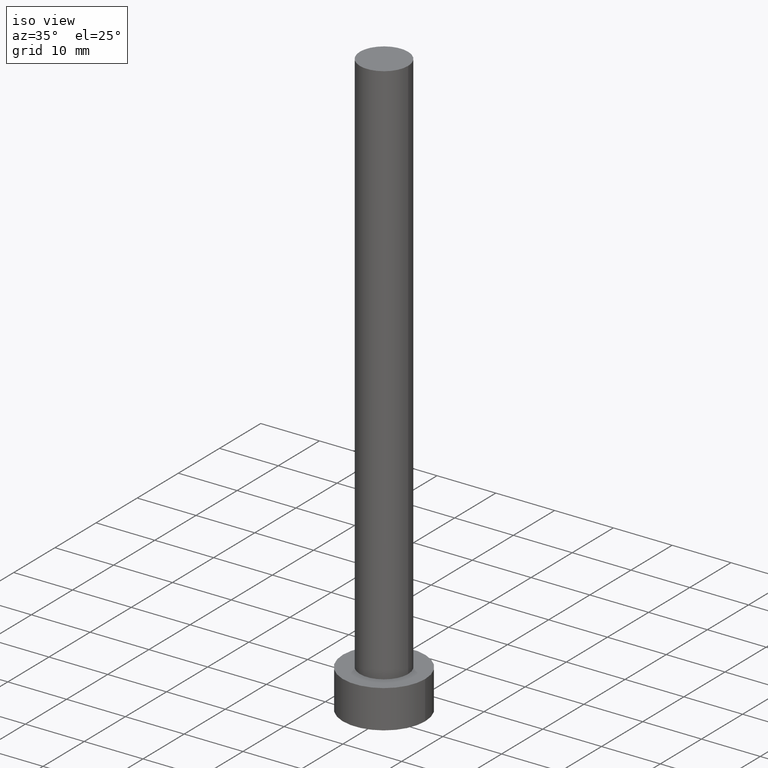
[diagram: clean part render]
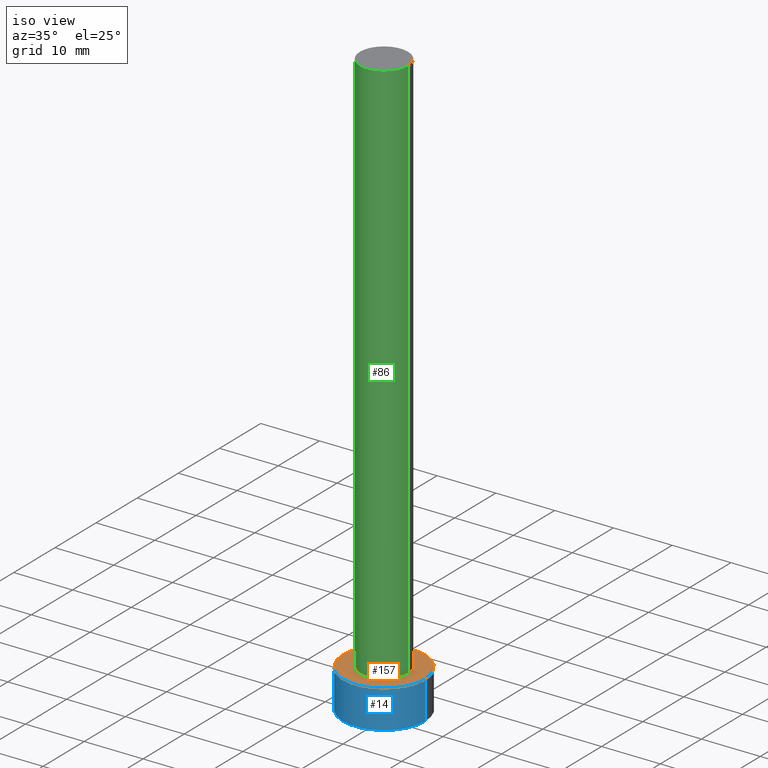
[diagram: same view with three faces highlighted in distinct colors, each labeled with its STEP entity id]
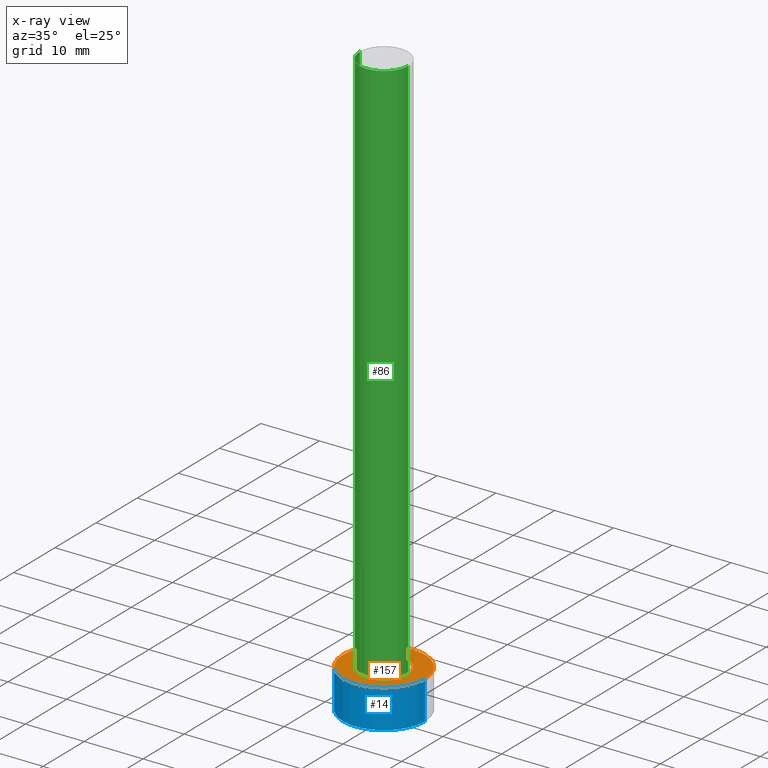
[diagram: x-ray of the same camera — body ghosted, the three highlighted faces saturated]
A machine part, iso view with three faces highlighted in distinct colors.
The next image is the same camera in x-ray (body ghosted, the three faces saturated) — at least one of them is partly hidden behind the body in this view.
Their STEP definitions:

[orange] entity #157 — the highlighted planar face has unit normal (0, 0, 1).
#1 = CARTESIAN_POINT ( 'NONE',  ( 0.000000000000000000, 0.000000000000000000, 6.500000000000000000 ) ) ;
#4 = CARTESIAN_POINT ( 'NONE',  ( -7.000000000000000000, 0.000000000000000000, 6.500000000000000000 ) ) ;
#13 = AXIS2_PLACEMENT_3D ( 'NONE', #1, #255, #175 ) ;
#16 = FACE_BOUND ( 'NONE', #26, .T. ) ;
#25 = DIRECTION ( 'NONE',  ( 0.000000000000000000, 0.000000000000000000, 1.000000000000000000 ) ) ;
#26 = EDGE_LOOP ( 'NONE', ( #96, #118 ) ) ;
#35 = FACE_OUTER_BOUND ( 'NONE', #208, .T. ) ;
#42 = DIRECTION ( 'NONE',  ( 1.000000000000000000, 0.000000000000000000, 0.000000000000000000 ) ) ;
#44 = ORIENTED_EDGE ( 'NONE', *, *, #232, .T. ) ;
#75 = CARTESIAN_POINT ( 'NONE',  ( 4.099999999999999645, 5.021051876504147385E-16, 6.500000000000000000 ) ) ;
#83 = VERTEX_POINT ( 'NONE', #217 ) ;
#85 = AXIS2_PLACEMENT_3D ( 'NONE', #149, #25, #115 ) ;
#89 = EDGE_CURVE ( 'NONE', #83, #122, #224, .T. ) ;
#90 = CIRCLE ( 'NONE', #134, 7.000000000000000000 ) ;
#93 = CARTESIAN_POINT ( 'NONE',  ( 0.000000000000000000, 0.000000000000000000, 6.500000000000000000 ) ) ;
#96 = ORIENTED_EDGE ( 'NONE', *, *, #89, .F. ) ;
#115 = DIRECTION ( 'NONE',  ( 1.000000000000000000, 0.000000000000000000, 0.000000000000000000 ) ) ;
#118 = ORIENTED_EDGE ( 'NONE', *, *, #173, .F. ) ;
#119 = CARTESIAN_POINT ( 'NONE',  ( 0.000000000000000000, 0.000000000000000000, 6.500000000000000000 ) ) ;
#120 = ORIENTED_EDGE ( 'NONE', *, *, #221, .T. ) ;
#122 = VERTEX_POINT ( 'NONE', #75 ) ;
#134 = AXIS2_PLACEMENT_3D ( 'NONE', #119, #161, #158 ) ;
#149 = CARTESIAN_POINT ( 'NONE',  ( 0.000000000000000000, 0.000000000000000000, 6.500000000000000000 ) ) ;
#154 = CARTESIAN_POINT ( 'NONE',  ( 0.000000000000000000, 0.000000000000000000, 6.500000000000000000 ) ) ;
#157 = ADVANCED_FACE ( 'NONE', ( #16, #35 ), #235, .T. ) ;
#158 = DIRECTION ( 'NONE',  ( 1.000000000000000000, 0.000000000000000000, 0.000000000000000000 ) ) ;
#160 = CIRCLE ( 'NONE', #85, 4.099999999999999645 ) ;
#161 = DIRECTION ( 'NONE',  ( 0.000000000000000000, 0.000000000000000000, 1.000000000000000000 ) ) ;
#169 = CIRCLE ( 'NONE', #195, 7.000000000000000000 ) ;
#173 = EDGE_CURVE ( 'NONE', #122, #83, #160, .T. ) ;
#175 = DIRECTION ( 'NONE',  ( 1.000000000000000000, 0.000000000000000000, 0.000000000000000000 ) ) ;
#177 = DIRECTION ( 'NONE',  ( 0.000000000000000000, 0.000000000000000000, 1.000000000000000000 ) ) ;
#195 = AXIS2_PLACEMENT_3D ( 'NONE', #154, #225, #42 ) ;
#206 = AXIS2_PLACEMENT_3D ( 'NONE', #93, #177, #213 ) ;
#207 = CARTESIAN_POINT ( 'NONE',  ( 7.000000000000000000, 8.572527594031471218E-16, 6.500000000000000000 ) ) ;
#208 = EDGE_LOOP ( 'NONE', ( #44, #120 ) ) ;
#213 = DIRECTION ( 'NONE',  ( 1.000000000000000000, 0.000000000000000000, -0.000000000000000000 ) ) ;
#217 = CARTESIAN_POINT ( 'NONE',  ( -4.099999999999999645, 0.000000000000000000, 6.500000000000000000 ) ) ;
#221 = EDGE_CURVE ( 'NONE', #244, #227, #90, .T. ) ;
#224 = CIRCLE ( 'NONE', #13, 4.099999999999999645 ) ;
#225 = DIRECTION ( 'NONE',  ( 0.000000000000000000, 0.000000000000000000, 1.000000000000000000 ) ) ;
#227 = VERTEX_POINT ( 'NONE', #4 ) ;
#232 = EDGE_CURVE ( 'NONE', #227, #244, #169, .T. ) ;
#235 = PLANE ( 'NONE',  #206 ) ;
#244 = VERTEX_POINT ( 'NONE', #207 ) ;
#255 = DIRECTION ( 'NONE',  ( 0.000000000000000000, 0.000000000000000000, 1.000000000000000000 ) ) ;

[blue] entity #14 — the highlighted cylindrical surface (partial cylindrical patch) has radius 7 mm, axis along (-0, -0, -1).
#2 = DIRECTION ( 'NONE',  ( 0.000000000000000000, 0.000000000000000000, 1.000000000000000000 ) ) ;
#3 = VERTEX_POINT ( 'NONE', #18 ) ;
#4 = CARTESIAN_POINT ( 'NONE',  ( -7.000000000000000000, 0.000000000000000000, 6.500000000000000000 ) ) ;
#5 = VERTEX_POINT ( 'NONE', #59 ) ;
#7 = FACE_OUTER_BOUND ( 'NONE', #137, .T. ) ;
#11 = CIRCLE ( 'NONE', #23, 7.000000000000000000 ) ;
#14 = ADVANCED_FACE ( 'NONE', ( #7 ), #95, .T. ) ;
#18 = CARTESIAN_POINT ( 'NONE',  ( 7.000000000000000000, 8.572527594031471218E-16, 0.000000000000000000 ) ) ;
#19 = EDGE_CURVE ( 'NONE', #5, #3, #11, .T. ) ;
#21 = CARTESIAN_POINT ( 'NONE',  ( 0.000000000000000000, 0.000000000000000000, 6.500000000000000000 ) ) ;
#23 = AXIS2_PLACEMENT_3D ( 'NONE', #181, #2, #186 ) ;
#42 = DIRECTION ( 'NONE',  ( 1.000000000000000000, 0.000000000000000000, 0.000000000000000000 ) ) ;
#57 = EDGE_CURVE ( 'NONE', #227, #5, #105, .T. ) ;
#59 = CARTESIAN_POINT ( 'NONE',  ( -7.000000000000000000, 0.000000000000000000, 0.000000000000000000 ) ) ;
#62 = DIRECTION ( 'NONE',  ( -1.000000000000000000, 0.000000000000000000, 0.000000000000000000 ) ) ;
#65 = VECTOR ( 'NONE', #68, 1000.000000000000000 ) ;
#68 = DIRECTION ( 'NONE',  ( -0.000000000000000000, -0.000000000000000000, -1.000000000000000000 ) ) ;
#79 = ORIENTED_EDGE ( 'NONE', *, *, #232, .F. ) ;
#92 = AXIS2_PLACEMENT_3D ( 'NONE', #21, #94, #62 ) ;
#94 = DIRECTION ( 'NONE',  ( -0.000000000000000000, -0.000000000000000000, -1.000000000000000000 ) ) ;
#95 = CYLINDRICAL_SURFACE ( 'NONE', #92, 7.000000000000000000 ) ;
#97 = ORIENTED_EDGE ( 'NONE', *, *, #19, .T. ) ;
#105 = LINE ( 'NONE', #126, #65 ) ;
#112 = CARTESIAN_POINT ( 'NONE',  ( 7.000000000000000000, 8.572527594031471218E-16, 6.500000000000000000 ) ) ;
#126 = CARTESIAN_POINT ( 'NONE',  ( -7.000000000000000000, 0.000000000000000000, 6.500000000000000000 ) ) ;
#135 = EDGE_CURVE ( 'NONE', #244, #3, #150, .T. ) ;
#137 = EDGE_LOOP ( 'NONE', ( #142, #79, #179, #97 ) ) ;
#142 = ORIENTED_EDGE ( 'NONE', *, *, #135, .F. ) ;
#147 = DIRECTION ( 'NONE',  ( -0.000000000000000000, -0.000000000000000000, -1.000000000000000000 ) ) ;
#150 = LINE ( 'NONE', #112, #252 ) ;
#154 = CARTESIAN_POINT ( 'NONE',  ( 0.000000000000000000, 0.000000000000000000, 6.500000000000000000 ) ) ;
#169 = CIRCLE ( 'NONE', #195, 7.000000000000000000 ) ;
#179 = ORIENTED_EDGE ( 'NONE', *, *, #57, .T. ) ;
#181 = CARTESIAN_POINT ( 'NONE',  ( 0.000000000000000000, 0.000000000000000000, 0.000000000000000000 ) ) ;
#186 = DIRECTION ( 'NONE',  ( 1.000000000000000000, 0.000000000000000000, 0.000000000000000000 ) ) ;
#195 = AXIS2_PLACEMENT_3D ( 'NONE', #154, #225, #42 ) ;
#207 = CARTESIAN_POINT ( 'NONE',  ( 7.000000000000000000, 8.572527594031471218E-16, 6.500000000000000000 ) ) ;
#225 = DIRECTION ( 'NONE',  ( 0.000000000000000000, 0.000000000000000000, 1.000000000000000000 ) ) ;
#227 = VERTEX_POINT ( 'NONE', #4 ) ;
#232 = EDGE_CURVE ( 'NONE', #227, #244, #169, .T. ) ;
#244 = VERTEX_POINT ( 'NONE', #207 ) ;
#252 = VECTOR ( 'NONE', #147, 1000.000000000000000 ) ;

[green] entity #86 — the highlighted cylindrical surface (edge-blend (fillet) strip) has radius 4.1 mm, axis along (-0, -0, -1).
#1 = CARTESIAN_POINT ( 'NONE',  ( 0.000000000000000000, 0.000000000000000000, 6.500000000000000000 ) ) ;
#8 = DIRECTION ( 'NONE',  ( 0.000000000000000000, 0.000000000000000000, 1.000000000000000000 ) ) ;
#12 = FACE_OUTER_BOUND ( 'NONE', #156, .T. ) ;
#13 = AXIS2_PLACEMENT_3D ( 'NONE', #1, #255, #175 ) ;
#15 = CYLINDRICAL_SURFACE ( 'NONE', #30, 4.099999999999999645 ) ;
#17 = AXIS2_PLACEMENT_3D ( 'NONE', #192, #8, #131 ) ;
#30 = AXIS2_PLACEMENT_3D ( 'NONE', #91, #172, #234 ) ;
#58 = ORIENTED_EDGE ( 'NONE', *, *, #63, .F. ) ;
#63 = EDGE_CURVE ( 'NONE', #184, #77, #146, .T. ) ;
#70 = CARTESIAN_POINT ( 'NONE',  ( 4.099999999999999645, 5.021051876504147385E-16, 100.0000000000000000 ) ) ;
#72 = DIRECTION ( 'NONE',  ( -0.000000000000000000, -0.000000000000000000, -1.000000000000000000 ) ) ;
#75 = CARTESIAN_POINT ( 'NONE',  ( 4.099999999999999645, 5.021051876504147385E-16, 6.500000000000000000 ) ) ;
#77 = VERTEX_POINT ( 'NONE', #70 ) ;
#83 = VERTEX_POINT ( 'NONE', #217 ) ;
#86 = ADVANCED_FACE ( 'NONE', ( #12 ), #15, .T. ) ;
#88 = CARTESIAN_POINT ( 'NONE',  ( 4.099999999999999645, 5.021051876504147385E-16, 100.0000000000000000 ) ) ;
#89 = EDGE_CURVE ( 'NONE', #83, #122, #224, .T. ) ;
#91 = CARTESIAN_POINT ( 'NONE',  ( 0.000000000000000000, 0.000000000000000000, 100.0000000000000000 ) ) ;
#108 = LINE ( 'NONE', #88, #166 ) ;
#122 = VERTEX_POINT ( 'NONE', #75 ) ;
#131 = DIRECTION ( 'NONE',  ( 1.000000000000000000, 0.000000000000000000, 0.000000000000000000 ) ) ;
#138 = CARTESIAN_POINT ( 'NONE',  ( -4.099999999999999645, 0.000000000000000000, 100.0000000000000000 ) ) ;
#146 = CIRCLE ( 'NONE', #17, 4.099999999999999645 ) ;
#156 = EDGE_LOOP ( 'NONE', ( #220, #58, #226, #246 ) ) ;
#166 = VECTOR ( 'NONE', #72, 1000.000000000000000 ) ;
#171 = EDGE_CURVE ( 'NONE', #77, #122, #108, .T. ) ;
#172 = DIRECTION ( 'NONE',  ( -0.000000000000000000, -0.000000000000000000, -1.000000000000000000 ) ) ;
#175 = DIRECTION ( 'NONE',  ( 1.000000000000000000, 0.000000000000000000, 0.000000000000000000 ) ) ;
#183 = DIRECTION ( 'NONE',  ( -0.000000000000000000, -0.000000000000000000, -1.000000000000000000 ) ) ;
#184 = VERTEX_POINT ( 'NONE', #247 ) ;
#192 = CARTESIAN_POINT ( 'NONE',  ( 0.000000000000000000, 0.000000000000000000, 100.0000000000000000 ) ) ;
#197 = EDGE_CURVE ( 'NONE', #184, #83, #242, .T. ) ;
#217 = CARTESIAN_POINT ( 'NONE',  ( -4.099999999999999645, 0.000000000000000000, 6.500000000000000000 ) ) ;
#220 = ORIENTED_EDGE ( 'NONE', *, *, #171, .F. ) ;
#224 = CIRCLE ( 'NONE', #13, 4.099999999999999645 ) ;
#226 = ORIENTED_EDGE ( 'NONE', *, *, #197, .T. ) ;
#234 = DIRECTION ( 'NONE',  ( -1.000000000000000000, 0.000000000000000000, 0.000000000000000000 ) ) ;
#238 = VECTOR ( 'NONE', #183, 1000.000000000000000 ) ;
#242 = LINE ( 'NONE', #138, #238 ) ;
#246 = ORIENTED_EDGE ( 'NONE', *, *, #89, .T. ) ;
#247 = CARTESIAN_POINT ( 'NONE',  ( -4.099999999999999645, 0.000000000000000000, 100.0000000000000000 ) ) ;
#255 = DIRECTION ( 'NONE',  ( 0.000000000000000000, 0.000000000000000000, 1.000000000000000000 ) ) ;